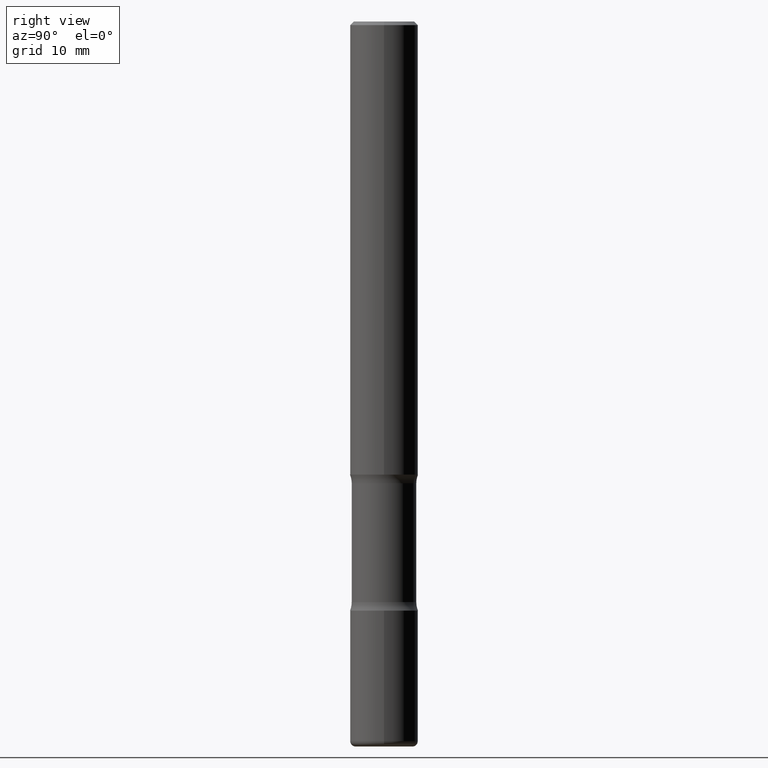
[diagram: clean part render]
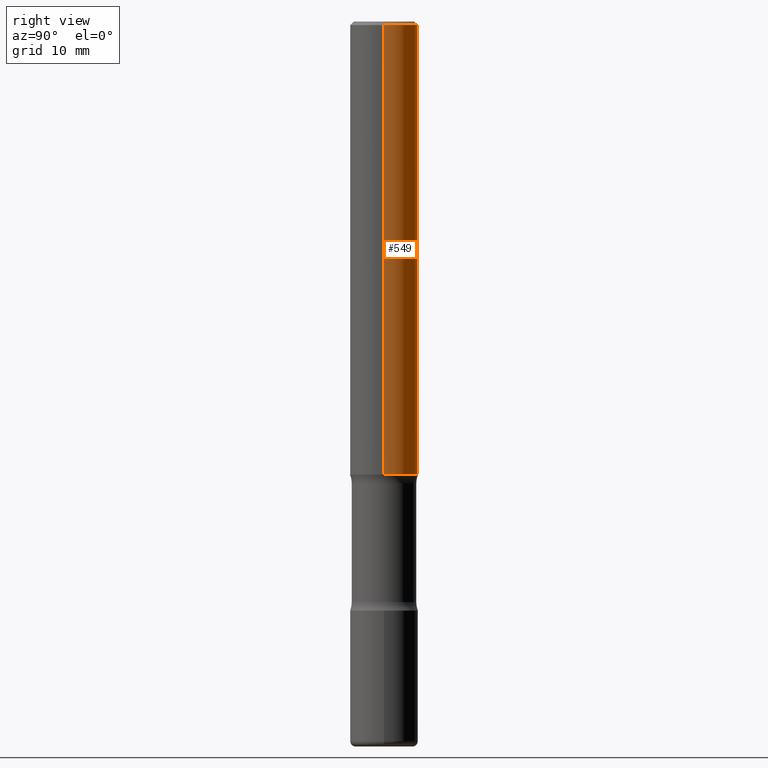
[diagram: same view with one face highlighted and labeled with its STEP entity id]
A machine part, right view. The second image highlights one B-rep face of the part: STEP entity #549.
In plain terms, the highlighted cylindrical surface (edge-blend (fillet) strip) has radius 4.7625 mm, axis along (-0, 0, 1).
Its self-contained STEP definition (entity closure, byte-faithful):
#14 = LINE ( 'NONE', #314, #324 ) ;
#28 = CYLINDRICAL_SURFACE ( 'NONE', #459, 0.1875000000000000278 ) ;
#38 = CIRCLE ( 'NONE', #157, 0.1874999999999999167 ) ;
#39 = CIRCLE ( 'NONE', #515, 0.1875000000000001110 ) ;
#61 = DIRECTION ( 'NONE',  ( -2.445468806185136877E-29, 3.491481338843145188E-15, 1.000000000000000000 ) ) ;
#70 = VERTEX_POINT ( 'NONE', #93 ) ;
#93 = CARTESIAN_POINT ( 'NONE',  ( -0.1874999999999999167, 1.239475875289311118E-15, -0.02000000000000006981 ) ) ;
#111 = EDGE_CURVE ( 'NONE', #371, #70, #38, .T. ) ;
#117 = DIRECTION ( 'NONE',  ( -2.445468806185136597E-29, 3.491481338843145583E-15, 1.000000000000000000 ) ) ;
#119 = ORIENTED_EDGE ( 'NONE', *, *, #111, .F. ) ;
#121 = CARTESIAN_POINT ( 'NONE',  ( 0.000000000000000000, 0.000000000000000000, 0.000000000000000000 ) ) ;
#124 = LINE ( 'NONE', #387, #263 ) ;
#157 = AXIS2_PLACEMENT_3D ( 'NONE', #495, #361, #534 ) ;
#169 = ORIENTED_EDGE ( 'NONE', *, *, #330, .F. ) ;
#204 = DIRECTION ( 'NONE',  ( 1.000000000000000000, -6.982962677686265922E-15, 4.876176775795935793E-29 ) ) ;
#211 = VERTEX_POINT ( 'NONE', #546 ) ;
#230 = EDGE_LOOP ( 'NONE', ( #504, #412, #119, #169 ) ) ;
#249 = FACE_OUTER_BOUND ( 'NONE', #230, .T. ) ;
#263 = VECTOR ( 'NONE', #277, 39.37007874015748143 ) ;
#277 = DIRECTION ( 'NONE',  ( -2.445468806185136877E-29, 3.491481338843145188E-15, 1.000000000000000000 ) ) ;
#314 = CARTESIAN_POINT ( 'NONE',  ( -0.1875000000000000278, 1.332267629550188046E-15, -9.223003294227947991E-30 ) ) ;
#324 = VECTOR ( 'NONE', #61, 39.37007874015748143 ) ;
#330 = EDGE_CURVE ( 'NONE', #211, #371, #124, .T. ) ;
#354 = DIRECTION ( 'NONE',  ( 1.000000000000000000, -6.982962677686263555E-15, 0.000000000000000000 ) ) ;
#361 = DIRECTION ( 'NONE',  ( -2.445468806185136597E-29, 3.491481338843145583E-15, 1.000000000000000000 ) ) ;
#363 = VERTEX_POINT ( 'NONE', #547 ) ;
#371 = VERTEX_POINT ( 'NONE', #372 ) ;
#372 = CARTESIAN_POINT ( 'NONE',  ( 0.1874999999999999167, -1.356173001359024677E-15, -0.02000000000000006981 ) ) ;
#387 = CARTESIAN_POINT ( 'NONE',  ( 0.1875000000000000278, -1.309305502066175008E-15, 9.142831454617381013E-30 ) ) ;
#412 = ORIENTED_EDGE ( 'NONE', *, *, #470, .T. ) ;
#421 = EDGE_CURVE ( 'NONE', #211, #363, #39, .T. ) ;
#440 = DIRECTION ( 'NONE',  ( -2.445468806185136597E-29, 3.491481338843145583E-15, 1.000000000000000000 ) ) ;
#459 = AXIS2_PLACEMENT_3D ( 'NONE', #121, #117, #204 ) ;
#470 = EDGE_CURVE ( 'NONE', #363, #70, #14, .T. ) ;
#495 = CARTESIAN_POINT ( 'NONE',  ( 4.890937612370289799E-31, -6.982962677686315028E-17, -0.02000000000000006981 ) ) ;
#504 = ORIENTED_EDGE ( 'NONE', *, *, #421, .T. ) ;
#515 = AXIS2_PLACEMENT_3D ( 'NONE', #533, #440, #354 ) ;
#533 = CARTESIAN_POINT ( 'NONE',  ( 6.113672015462842613E-29, -8.728703347107864943E-15, -2.500000000000000000 ) ) ;
#534 = DIRECTION ( 'NONE',  ( 1.000000000000000000, -6.982962677686265922E-15, 0.000000000000000000 ) ) ;
#546 = CARTESIAN_POINT ( 'NONE',  ( 0.1875000000000001110, -1.003800884917403995E-14, -2.500000000000000000 ) ) ;
#547 = CARTESIAN_POINT ( 'NONE',  ( -0.1875000000000000833, -3.066998857392172722E-15, -2.500000000000000000 ) ) ;
#549 = ADVANCED_FACE ( 'NONE', ( #249 ), #28, .T. ) ;